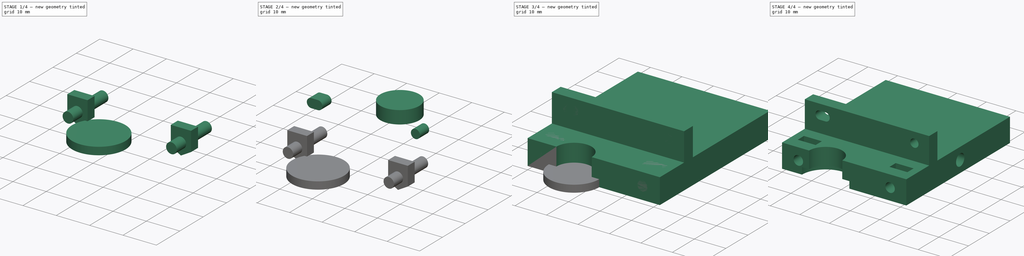
[diagram: build sequence overview — one tinted view per stage of 4, left to right]
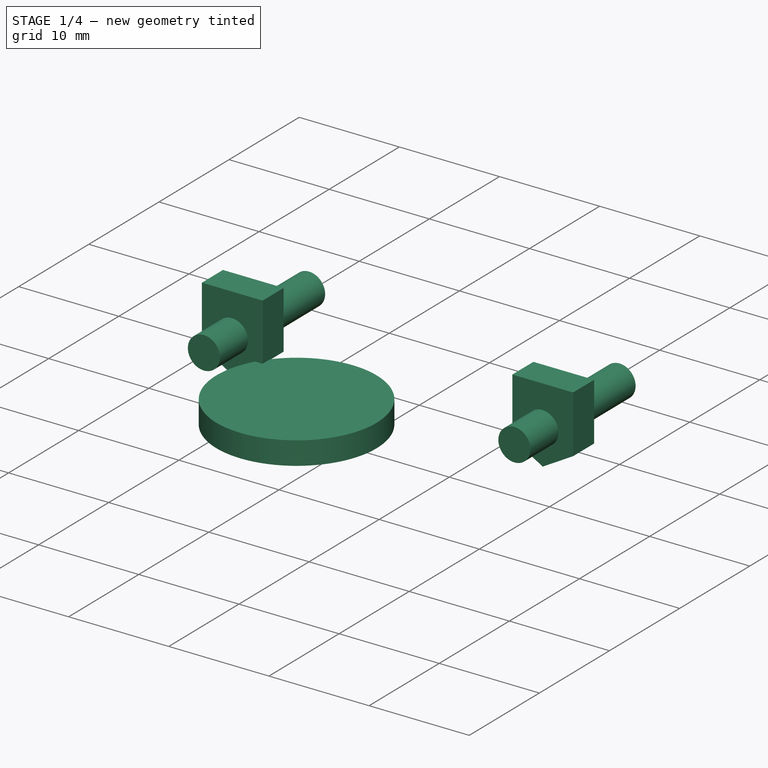
[diagram: stage 1 of 4 — iso view after this stage's code; geometry added in this stage tinted green]
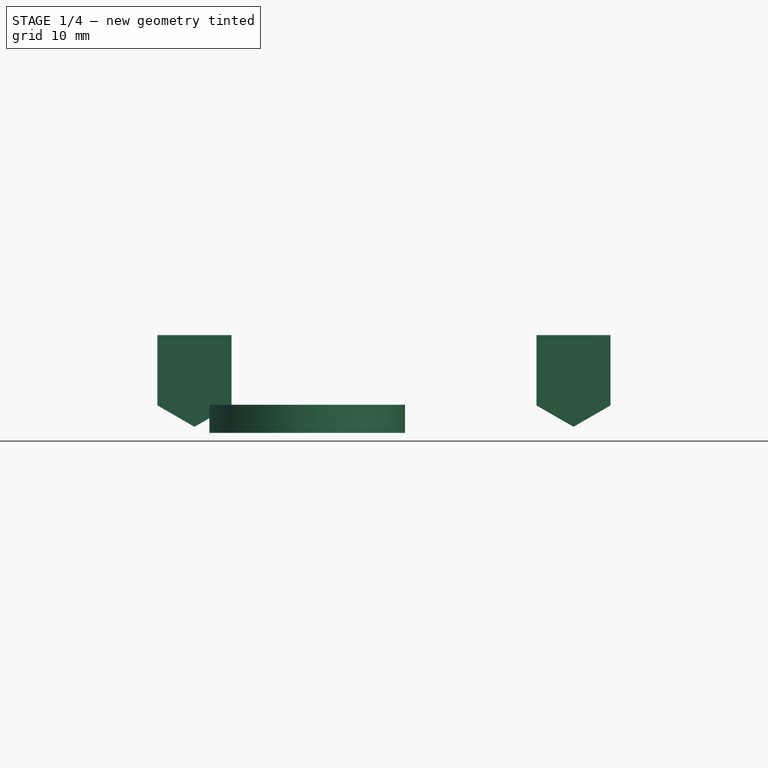
[diagram: stage 1 of 4 — front view after this stage's code; geometry added in this stage tinted green]
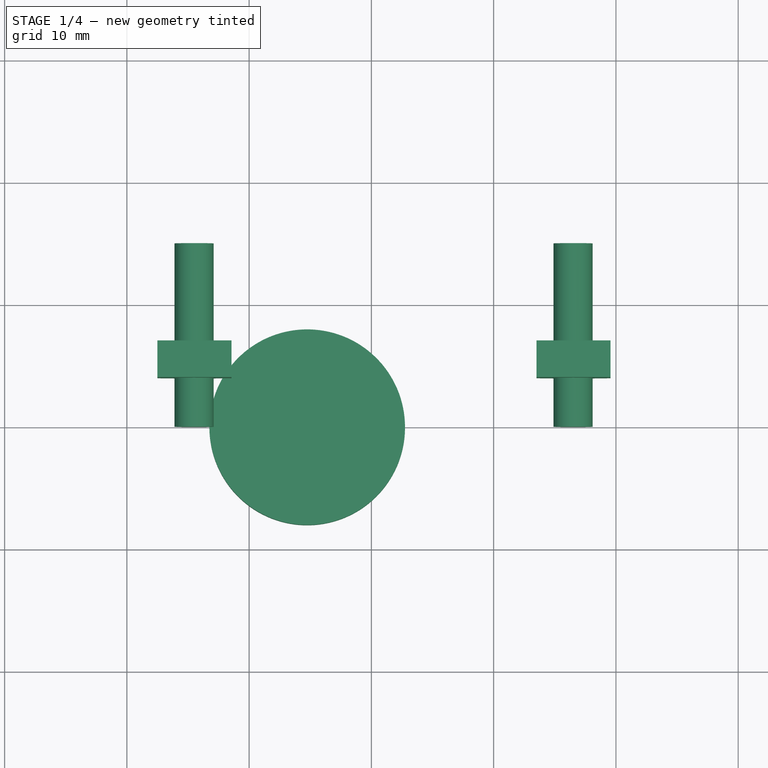
[diagram: stage 1 of 4 — top view after this stage's code; geometry added in this stage tinted green]
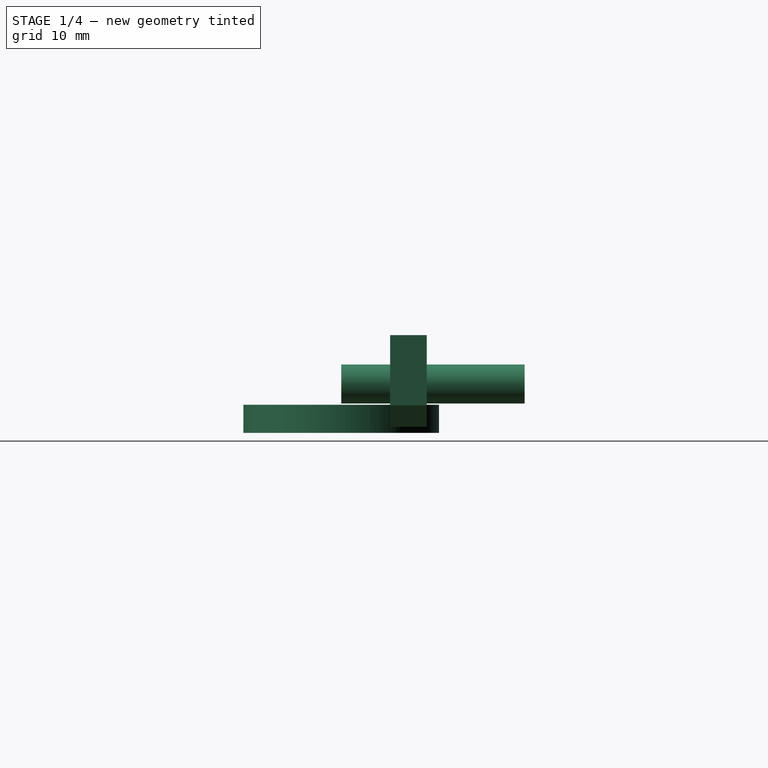
[diagram: stage 1 of 4 — right view after this stage's code; geometry added in this stage tinted green]
FCSTD DOCUMENT  (FreeCAD 0.16R6707 (Git))
Label: ExtruderLever
License: All rights reserved
LicenseURL: http://en.wikipedia.org/wiki/All_rights_reserved
objects: Sketcher::SketchObject×8, PartDesign::Pad×8, Part::Cut×2, Part::MultiFuse×2
note: 28 computed .brp shape members not serialized (recipe doc carries the construction recipe); baked Part::Feature solids carry a one-line shape summary decoded from their .brp

FEATURE [Sketcher::SketchObject] Sketch005  label="HotEndSK"
  sketch-geometry (1):
    g0: Circle CenterX=14.75 CenterY=0 CenterZ=0 NormalX=0 NormalY=0 NormalZ=1 Radius=8
  constraints (3):
    c: PointOnObject(g0,g-1)
    c: DistanceX(g-1,g0) = 14.75
    c: Radius(g0) = 8
FEATURE [PartDesign::Pad] Pad005  label="HotEndMount"
  Length = 2.3
  Length2 = 100
  Sketch = -> Sketch005
  Type = 0
FEATURE [Sketcher::SketchObject] Sketch006  label="NutMountSK"
  Placement = pos=(0,4,0) rot=(1,0,0;1.5708rad)
  sketch-geometry (16):
    g0: LineSegment StartX=5.53109 StartY=0.5 StartZ=0 EndX=8.56218 EndY=2.25 EndZ=0
    g1: LineSegment StartX=8.56218 StartY=2.25 StartZ=0 EndX=8.56218 EndY=5.75 EndZ=0
    g2: LineSegment StartX=2.5 StartY=5.75 StartZ=0 EndX=2.5 EndY=2.25 EndZ=0
    g3: LineSegment StartX=2.5 StartY=2.25 StartZ=0 EndX=5.53109 EndY=0.5 EndZ=0
    g4: Circle [constr] CenterX=5.53109 CenterY=4 CenterZ=0 NormalX=0 NormalY=0 NormalZ=1 Radius=3.5
    g5: LineSegment StartX=39.5622 StartY=2.25 StartZ=0 EndX=39.5622 EndY=5.75 EndZ=0
    g6: LineSegment StartX=33.5 StartY=5.75 StartZ=0 EndX=33.5 EndY=2.25 EndZ=0
    g7: LineSegment StartX=33.5 StartY=2.25 StartZ=0 EndX=36.5311 EndY=0.5 EndZ=0
    g8: LineSegment StartX=36.5311 StartY=0.5 StartZ=0 EndX=39.5622 EndY=2.25 EndZ=0
    g9: Circle [constr] CenterX=36.5311 CenterY=4 CenterZ=0 NormalX=0 NormalY=0 NormalZ=1 Radius=3.5
    g10: LineSegment StartX=2.5 StartY=5.75 StartZ=0 EndX=2.5 EndY=8 EndZ=0
    g11: LineSegment StartX=8.56218 StartY=8 StartZ=0 EndX=8.56218 EndY=5.75 EndZ=0
    g12: LineSegment StartX=2.5 StartY=8 StartZ=0 EndX=8.56218 EndY=8 EndZ=0
    g13: LineSegment StartX=33.5 StartY=5.75 StartZ=0 EndX=33.5 EndY=8 EndZ=0
    g14: LineSegment StartX=33.5 StartY=8 StartZ=0 EndX=39.5622 EndY=8 EndZ=0
    g15: LineSegment StartX=39.5622 StartY=8 StartZ=0 EndX=39.5622 EndY=5.75 EndZ=0
  constraints (48):
    c: Coincident(g0,g1)
    c: Coincident(g2,g3)
    c: Coincident(g3,g0)
    c: Equal(g0,g1)
    c: Equal(g0,g2)
    c: Equal(g0,g3)
    c: PointOnObject(g0,g4)
    c: PointOnObject(g1,g4)
    c: PointOnObject(g2,g4)
    c: PointOnObject(g2,g4)
    c: PointOnObject(g3,g4)
    c: Coincident(g6,g7)
    c: Coincident(g7,g8)
    c: Coincident(g8,g5)
    c: Equal(g5,g6)
    c: Equal(g5,g7)
    c: Equal(g5,g8)
    c: PointOnObject(g5,g9)
    c: PointOnObject(g6,g9)
    c: PointOnObject(g6,g9)
    c: PointOnObject(g7,g9)
    c: PointOnObject(g8,g9)
    c: DistanceY(g4,g9) = 0
    c: Radius(g4) = 3.5
    c: Equal(g4,g9)
    c: Parallel(g6,g2)
    c: Parallel(g2,g-2)
    c: Vertical(g10)
    c: Vertical(g11)
    c: Coincident(g12,g11)
    c: Coincident(g12,g10)
    c: Horizontal(g12)
    c: Coincident(g11,g1)
    c: Coincident(g10,g2)
    c: Vertical(g1)
    c: Vertical(g5)
    c: Vertical(g13)
    c: Coincident(g13,g14)
    c: Horizontal(g14)
    c: Coincident(g14,g15)
    c: Vertical(g15)
    c: Coincident(g15,g5)
    c: Coincident(g13,g6)
    c: Equal(g11,g13)
    c: DistanceX(g-1,g2) = 2.5
    c: DistanceX(g4,g9) = 31
    c: DistanceY(g-1,g4) = 4
    c: DistanceY(g-1,g10) = 8
FEATURE [PartDesign::Pad] Pad006  label="NutMount"
  Length = 3
  Length2 = 100
  Placement = pos=(0,4,0) rot=(1,0,0;1.5708rad)
  Reversed = true
  Sketch = -> Sketch006
  Type = 0
FEATURE [Sketcher::SketchObject] Sketch007  label="HotEndSK02"
  Placement = pos=(0,0,0) rot=(1,0,0;1.5708rad)
  sketch-geometry (2):
    g0: Circle CenterX=5.5 CenterY=4 CenterZ=0 NormalX=0 NormalY=0 NormalZ=1 Radius=1.6
    g1: Circle CenterX=36.5 CenterY=4 CenterZ=0 NormalX=0 NormalY=0 NormalZ=1 Radius=1.6
  constraints (6):
    c: Radius(g1) = 1.6
    c: Equal(g1,g0)
    c: DistanceY(g1,g0) = 0
    c: DistanceX(g-1,g0) = 5.5
    c: DistanceX(g0,g1) = 31
    c: DistanceY(g-1,g0) = 4
FEATURE [PartDesign::Pad] Pad007  label="HotEndMount02"
  Length = 15
  Length2 = 100
  Placement = pos=(0,0,0) rot=(1,0,0;1.5708rad)
  Reversed = true
  Sketch = -> Sketch007
  Type = 0
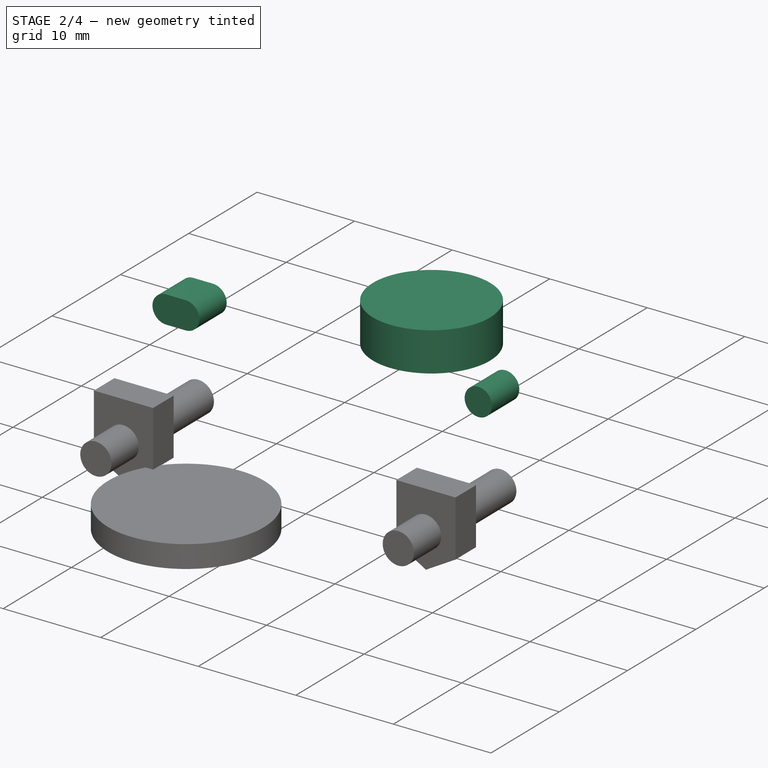
[diagram: stage 2 of 4 — iso view after this stage's code; geometry added in this stage tinted green]
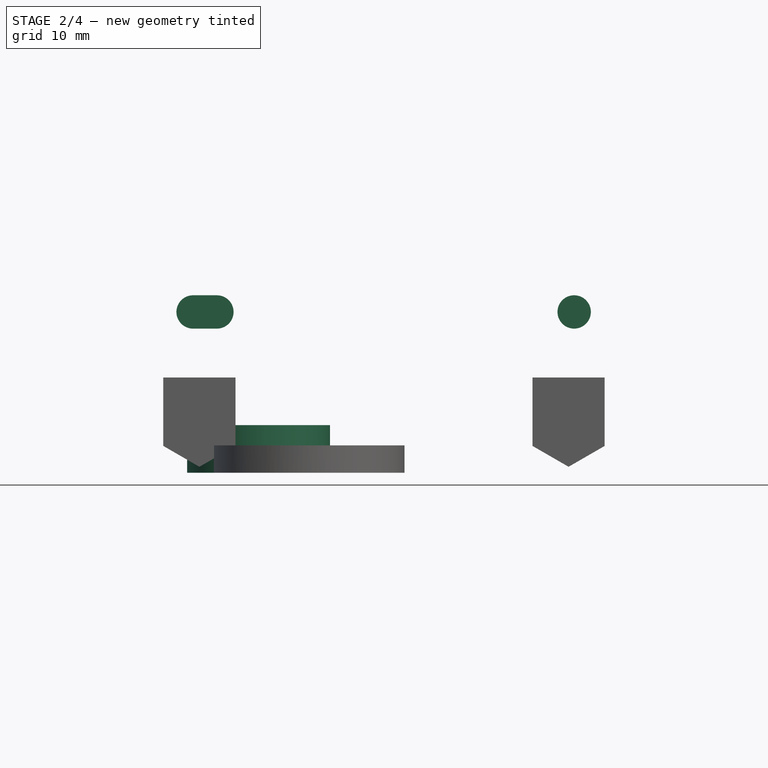
[diagram: stage 2 of 4 — front view after this stage's code; geometry added in this stage tinted green]
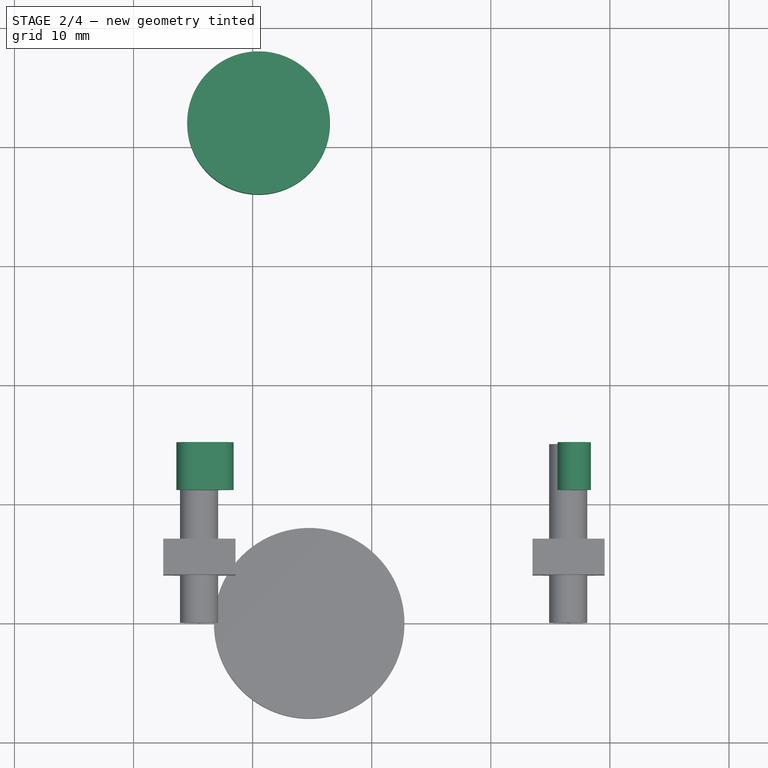
[diagram: stage 2 of 4 — top view after this stage's code; geometry added in this stage tinted green]
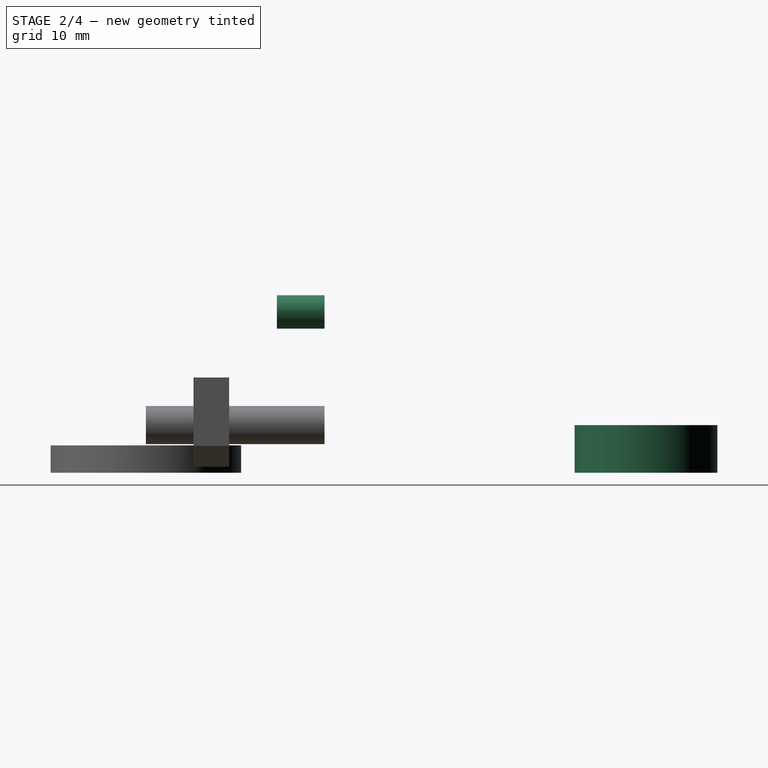
[diagram: stage 2 of 4 — right view after this stage's code; geometry added in this stage tinted green]
FEATURE [Sketcher::SketchObject] Sketch003  label="MotorSK"
  Placement = pos=(0,11,0) rot=(1,0,0;1.5708rad)
  sketch-geometry (5):
    g0: Circle CenterX=37 CenterY=13.5 CenterZ=0 NormalX=0 NormalY=0 NormalZ=1 Radius=1.4
    g1: ArcOfCircle CenterX=5 CenterY=13.5 CenterZ=0 NormalX=0 NormalY=0 NormalZ=1 Radius=1.4 StartAngle=1.5708 EndAngle=4.71239
    g2: ArcOfCircle CenterX=7 CenterY=13.5 CenterZ=0 NormalX=0 NormalY=0 NormalZ=1 Radius=1.4 StartAngle=4.71239 EndAngle=7.85398
    g3: LineSegment StartX=5 StartY=12.1 StartZ=0 EndX=7 EndY=12.1 EndZ=0
    g4: LineSegment StartX=5 StartY=14.9 StartZ=0 EndX=7 EndY=14.9 EndZ=0
  constraints (13):
    c: Radius(g0) = 1.4
    c: Tangent(g1,g4) = 1.5708
    c: Tangent(g1,g3) = -1.5708
    c: Tangent(g3,g2) = -1.5708
    c: Tangent(g4,g2) = 1.5708
    c: Horizontal(g3)
    c: Equal(g1,g2)
    c: Equal(g2,g0)
    c: DistanceY(g2,g0) = 0
    c: DistanceX(g2,g0) = 30
    c: DistanceX(g1,g2) = 2
    c: DistanceY(g-1,g1) = 13.5
    c: DistanceX(g-1,g0) = 37
FEATURE [PartDesign::Pad] Pad003  label="MotorMount"
  Length = 4
  Length2 = 100
  Placement = pos=(0,11,0) rot=(1,0,0;1.5708rad)
  Reversed = true
  Sketch = -> Sketch003
  Type = 0
FEATURE [Sketcher::SketchObject] Sketch004  label="SpringSK"
  sketch-geometry (1):
    g0: Circle CenterX=10.5 CenterY=42 CenterZ=0 NormalX=0 NormalY=0 NormalZ=1 Radius=6
  constraints (3):
    c: Radius(g0) = 6
    c: DistanceX(g-1,g0) = 10.5
    c: DistanceY(g-1,g0) = 42
FEATURE [PartDesign::Pad] Pad004  label="SpringMount"
  Length = 4
  Length2 = 100
  Sketch = -> Sketch004
  Type = 0
FEATURE [Part::MultiFuse] Fusion001  label="CutBlock"
  Shapes = -> [Pad003,Pad006,Pad005,Pad004,Pad007]
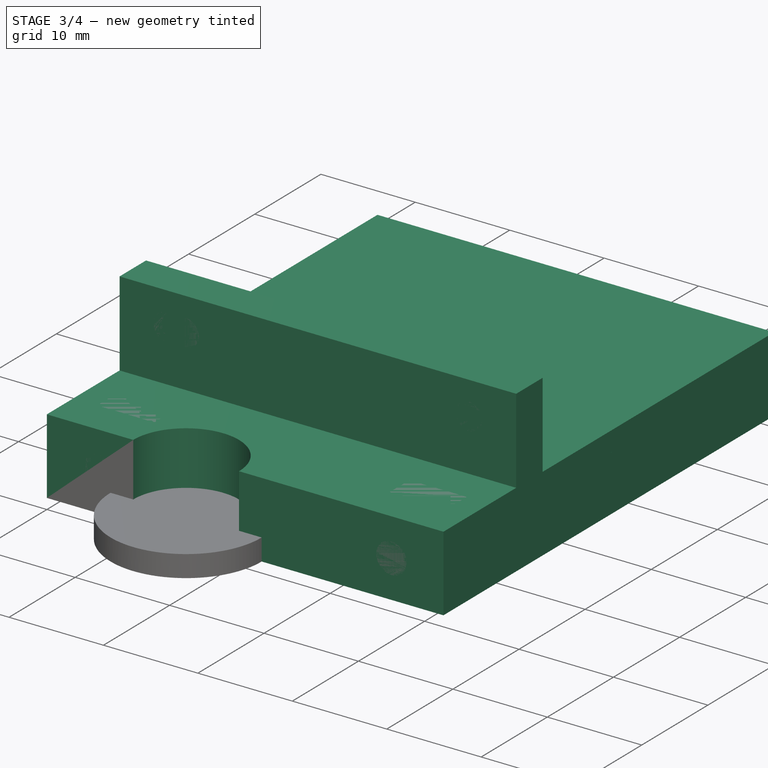
[diagram: stage 3 of 4 — iso view after this stage's code; geometry added in this stage tinted green]
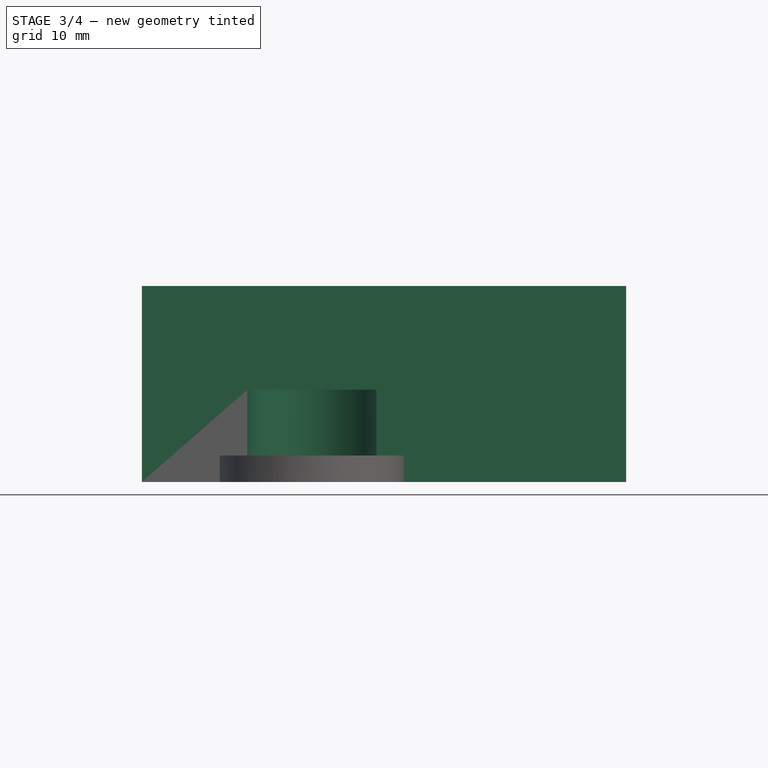
[diagram: stage 3 of 4 — front view after this stage's code; geometry added in this stage tinted green]
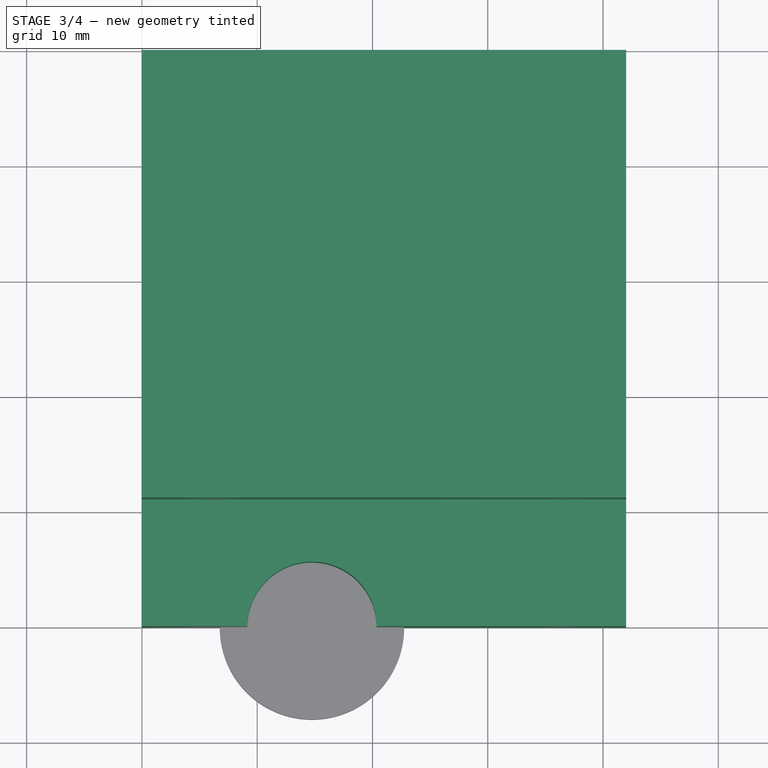
[diagram: stage 3 of 4 — top view after this stage's code; geometry added in this stage tinted green]
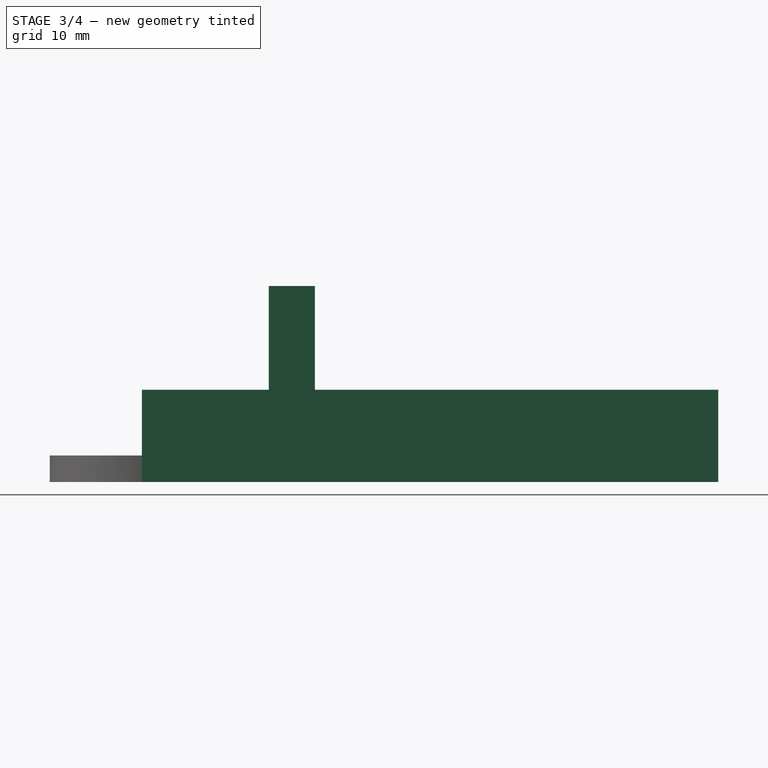
[diagram: stage 3 of 4 — right view after this stage's code; geometry added in this stage tinted green]
FEATURE [Sketcher::SketchObject] Sketch  label="BaseSK"
  sketch-geometry (6):
    g0: LineSegment StartX=0 StartY=50 StartZ=0 EndX=42 EndY=50 EndZ=0
    g1: LineSegment StartX=42 StartY=50 StartZ=0 EndX=42 EndY=0 EndZ=0
    g2: LineSegment StartX=0 StartY=0 StartZ=0 EndX=0 EndY=50 EndZ=0
    g3: ArcOfCircle CenterX=14.75 CenterY=0 CenterZ=0 NormalX=0 NormalY=0 NormalZ=1 Radius=5.6 StartAngle=0 EndAngle=3.14159
    g4: LineSegment StartX=9.15 StartY=0 StartZ=0 EndX=0 EndY=0 EndZ=0
    g5: LineSegment StartX=20.35 StartY=0 StartZ=0 EndX=42 EndY=0 EndZ=0
  constraints (18):
    c: Coincident(g0,g1)
    c: Coincident(g2,g0)
    c: Horizontal(g0)
    c: Vertical(g1)
    c: Vertical(g2)
    c: DistanceX(g2,g1) = 42
    c: DistanceY(g2,g2) = 50
    c: Horizontal(g5)
    c: Horizontal(g4)
    c: Coincident(g4,g-1)
    c: Coincident(g3,g4)
    c: PointOnObject(g3,g-1)
    c: Coincident(g3,g5)
    c: Coincident(g5,g1)
    c: Equal(g1,g2)
    c: Coincident(g2,g-1)
    c: Radius(g3) = 5.6
    c: DistanceX(g4,g3) = 14.75
FEATURE [PartDesign::Pad] Pad  label="Base"
  Length = 8
  Length2 = 100
  Sketch = -> Sketch
  Type = 0
FEATURE [Sketcher::SketchObject] Sketch001
  Placement = pos=(0,0,0) rot=(0.57735,0.57735,0.57735;2.0944rad)
  sketch-geometry (1):
    g0: Circle CenterX=26 CenterY=4 CenterZ=0 NormalX=0 NormalY=0 NormalZ=1 Radius=2
  constraints (3):
    c: DistanceX(g-1,g0) = 26
    c: Radius(g0) = 2
    c: DistanceY(g-1,g0) = 4
FEATURE [PartDesign::Pad] Pad001
  Length = 42
  Length2 = 100
  Placement = pos=(0,0,0) rot=(0.57735,0.57735,0.57735;2.0944rad)
  Sketch = -> Sketch001
  Type = 0
FEATURE [Sketcher::SketchObject] Sketch002
  Placement = pos=(0,0,8) rot=(0,0,1;0rad)
  sketch-geometry (4):
    g0: LineSegment StartX=0 StartY=15 StartZ=0 EndX=42 EndY=15 EndZ=0
    g1: LineSegment StartX=42 StartY=15 StartZ=0 EndX=42 EndY=11 EndZ=0
    g2: LineSegment StartX=42 StartY=11 StartZ=0 EndX=0 EndY=11 EndZ=0
    g3: LineSegment StartX=0 StartY=11 StartZ=0 EndX=0 EndY=15 EndZ=0
  constraints (12):
    c: Coincident(g0,g1)
    c: Coincident(g1,g2)
    c: Coincident(g2,g3)
    c: Coincident(g3,g0)
    c: Horizontal(g0)
    c: Horizontal(g2)
    c: Vertical(g1)
    c: Vertical(g3)
    c: PointOnObject(g2,g-2)
    c: DistanceY(g3,g3) = 4
    c: DistanceY(g-1,g0) = 15
    c: DistanceX(g0,g0) = 42
FEATURE [PartDesign::Pad] Pad002
  Length = 9
  Length2 = 100
  Placement = pos=(0,0,8) rot=(0,0,1;0rad)
  Sketch = -> Sketch002
  Type = 0
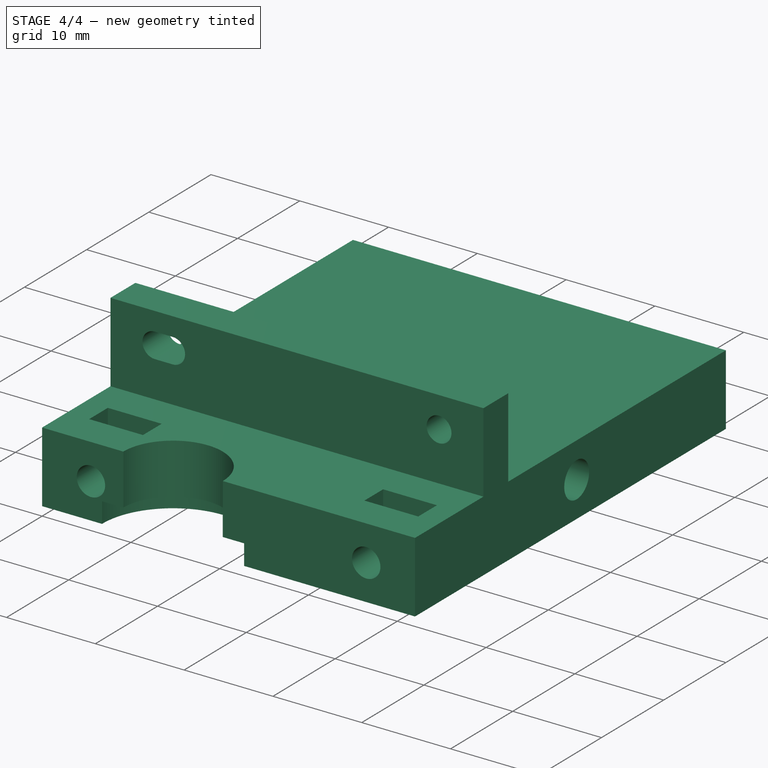
[diagram: stage 4 of 4 — iso view after this stage's code; geometry added in this stage tinted green]
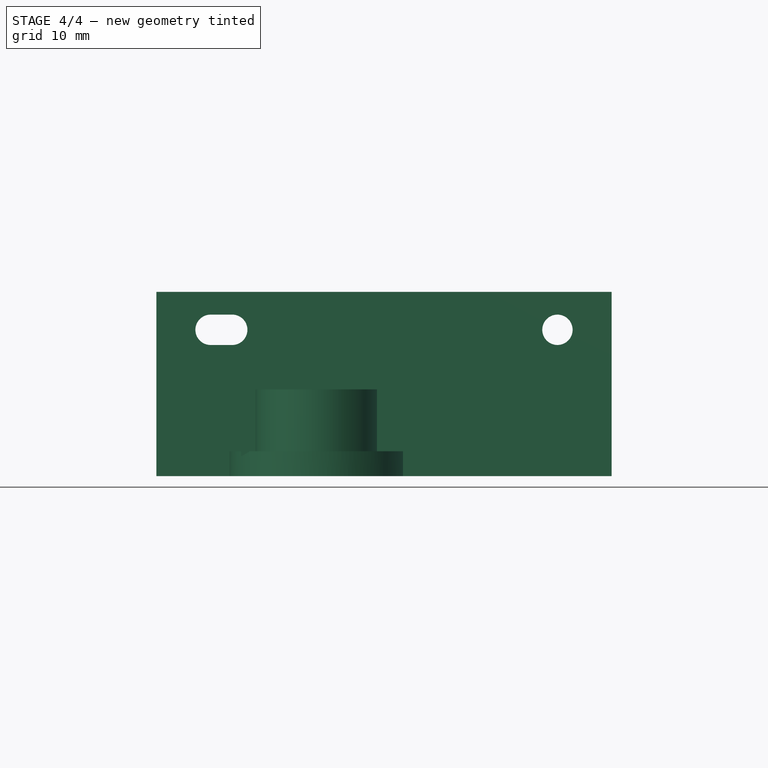
[diagram: stage 4 of 4 — front view after this stage's code; geometry added in this stage tinted green]
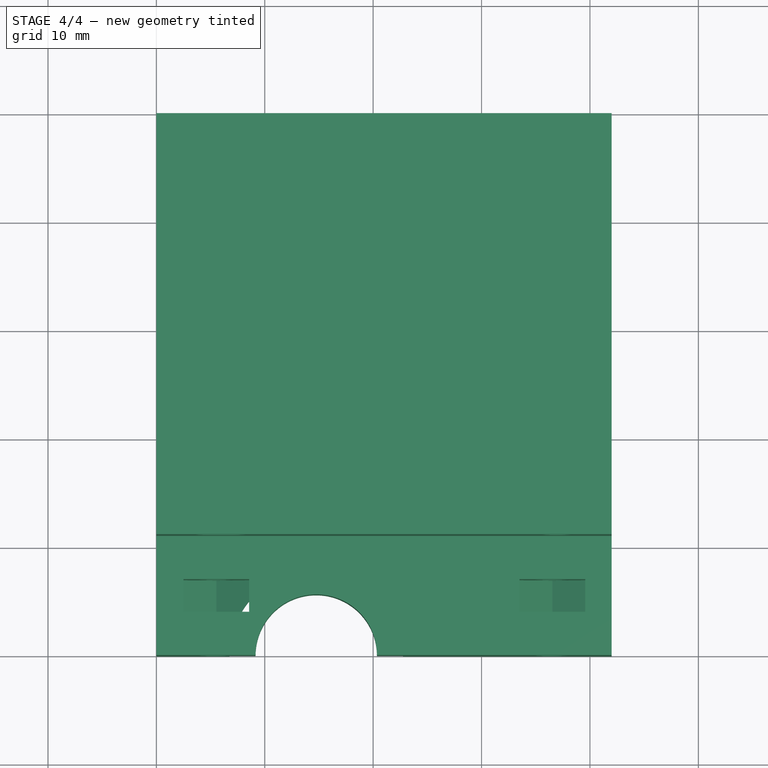
[diagram: stage 4 of 4 — top view after this stage's code; geometry added in this stage tinted green]
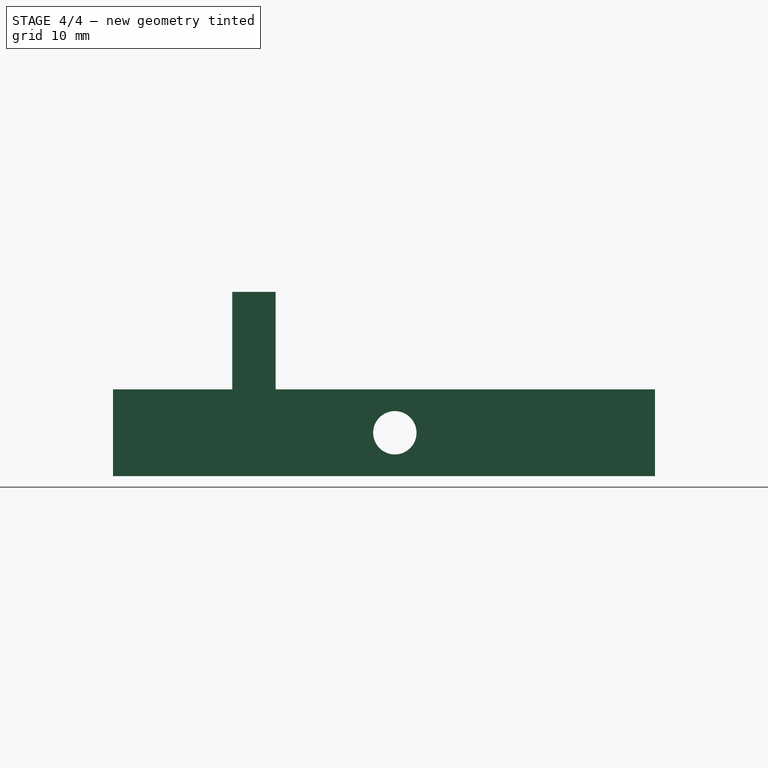
[diagram: stage 4 of 4 — right view after this stage's code; geometry added in this stage tinted green]
FEATURE [Part::Cut] Cut
  Base = -> Pad
  Tool = -> Pad001
FEATURE [Part::MultiFuse] Fusion  label="BaseBlock"
  Shapes = -> [Cut,Pad002]
FEATURE [Part::Cut] Cut001  label="Final"
  Base = -> Fusion
  Tool = -> Fusion001
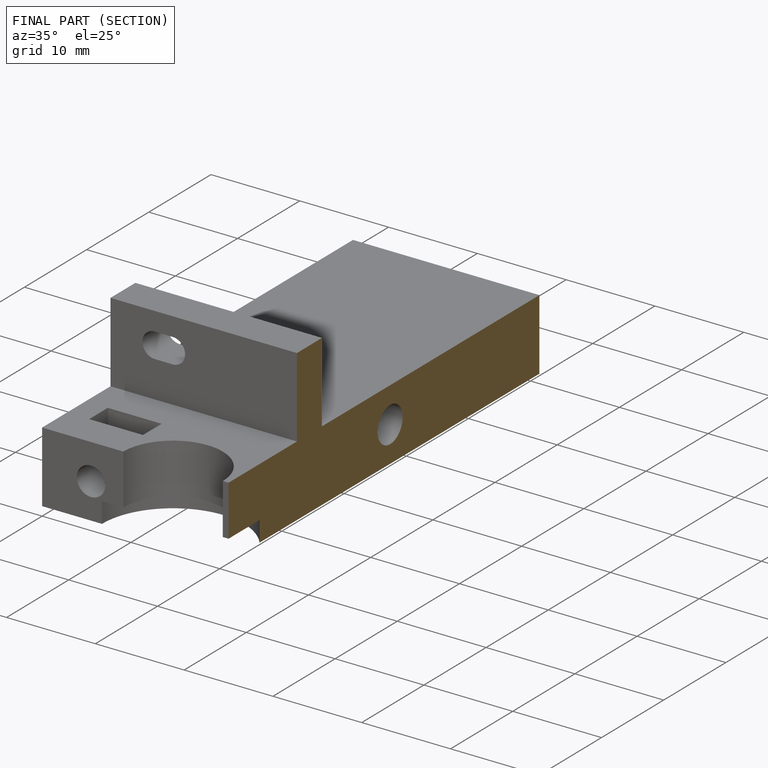
[diagram: finished part — half-section view (interior)]
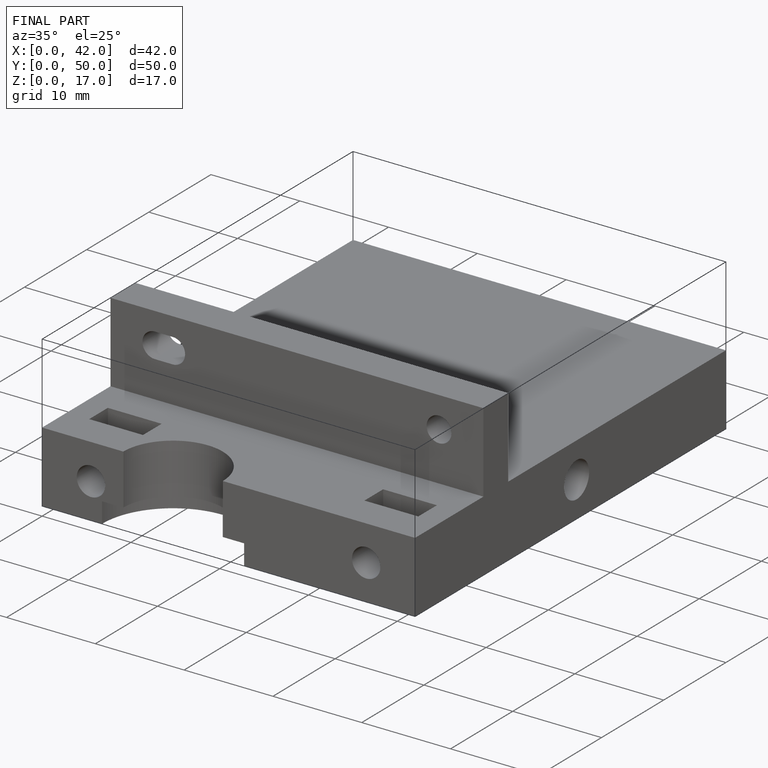
[diagram: finished part — iso view with bounding-box wireframe]
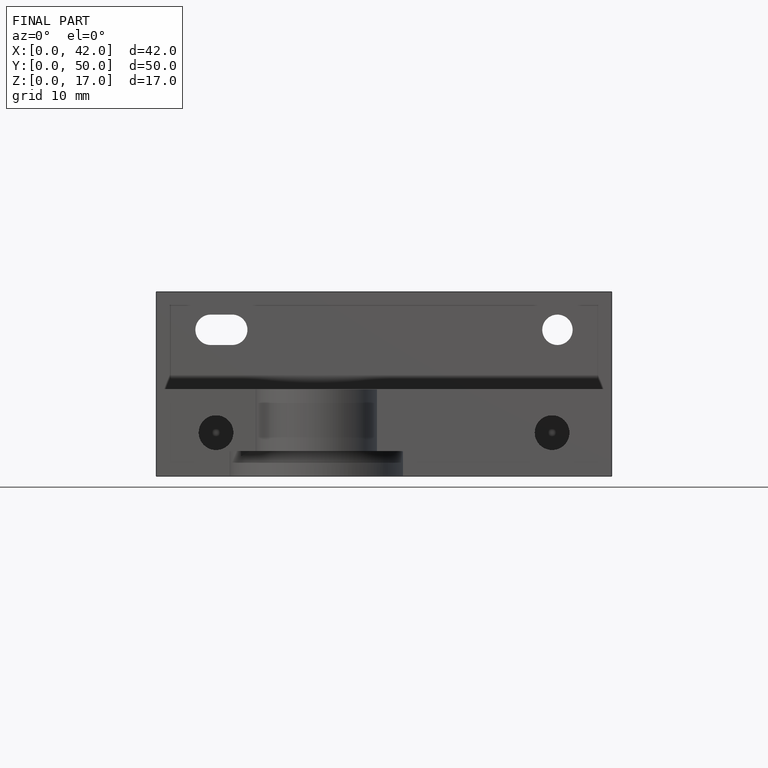
[diagram: finished part — front view with bounding-box wireframe]
